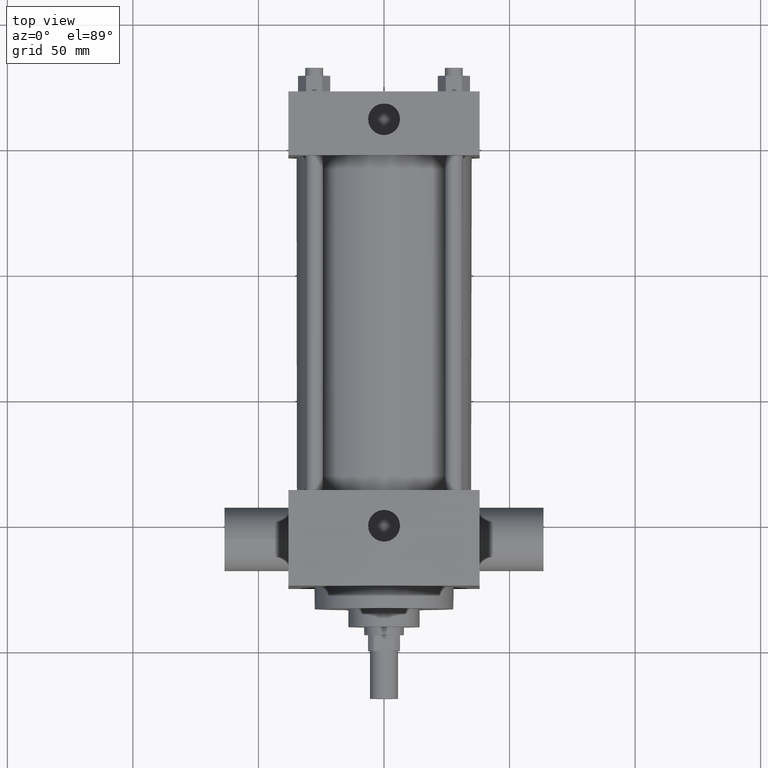
[diagram: clean part render]
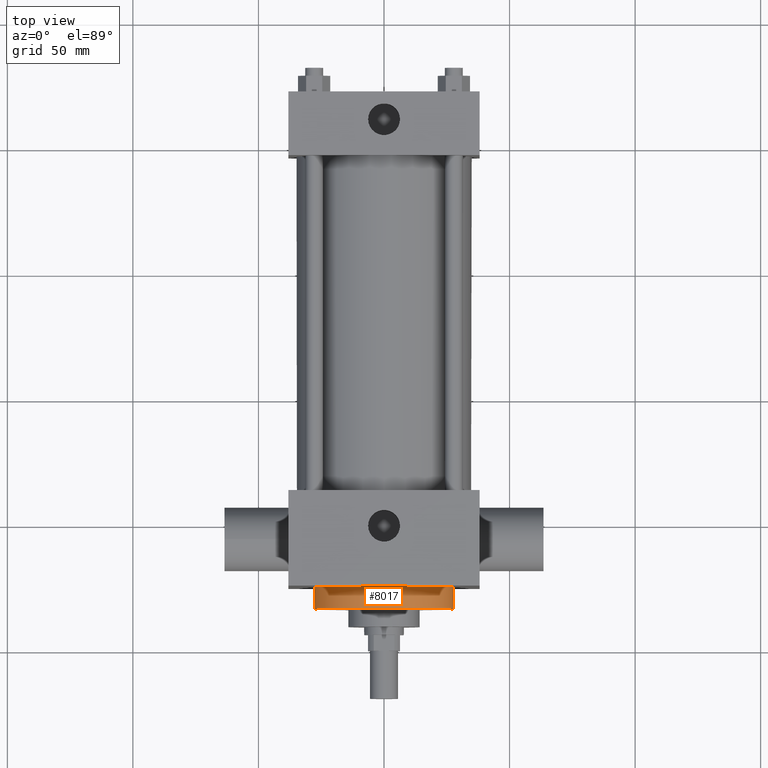
[diagram: same view with one face highlighted and labeled with its STEP entity id]
A machine part, top view. The second image highlights one B-rep face of the part: STEP entity #8017.
In plain terms, the highlighted cylindrical surface (bore or boss wall) has radius 27.7749 mm, axis along (0, -1, 0).
Its self-contained STEP definition (entity closure, byte-faithful):
#405=EDGE_CURVE('',#411,#411,#406,.T.);
#406=CIRCLE('',#407,2.777490000E+001);
#407=AXIS2_PLACEMENT_3D('',#408,#409,#410);
#408=CARTESIAN_POINT('',(0.000000000E+000,1.666875000E+001,0.000000000E+000));
#409=DIRECTION('',(0.0E+000,-1.0E+000,0.0E+000));
#410=DIRECTION('',(0.0E+000,0.0E+000,-1.0E+000));
#411=VERTEX_POINT('',#412);
#412=CARTESIAN_POINT('',(0.000000000E+000,1.666875000E+001,-2.777490000E+001));
#446=FACE_OUTER_BOUND('',#448,.T.);
#447=FACE_BOUND('',#449,.T.);
#448=EDGE_LOOP('',(#450));
#449=EDGE_LOOP('',(#459));
#450=ORIENTED_EDGE('',*,*,#451,.F.);
#451=EDGE_CURVE('',#457,#457,#452,.T.);
#452=CIRCLE('',#453,2.777490000E+001);
#453=AXIS2_PLACEMENT_3D('',#454,#455,#456);
#454=CARTESIAN_POINT('',(0.000000000E+000,2.540000000E+001,0.000000000E+000));
#455=DIRECTION('',(0.0E+000,1.0E+000,0.0E+000));
#456=DIRECTION('',(1.0E+000,0.0E+000,0.0E+000));
#457=VERTEX_POINT('',#458);
#458=CARTESIAN_POINT('',(2.777490000E+001,2.540000000E+001,0.000000000E+000));
#459=ORIENTED_EDGE('',*,*,#405,.F.);
#460=CYLINDRICAL_SURFACE('',#461,2.777490000E+001);
#461=AXIS2_PLACEMENT_3D('',#462,#463,#464);
#462=CARTESIAN_POINT('',(0.000000000E+000,2.540000000E+001,0.000000000E+000));
#463=DIRECTION('',(0.0E+000,-1.0E+000,0.0E+000));
#464=DIRECTION('',(0.0E+000,0.0E+000,-1.0E+000));
#8017=ADVANCED_FACE('',(#446,#447),#460,.T.);